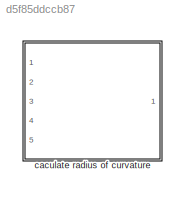
MODEL slx_d5f85ddccb87
KIND library
CONFIG AbsTol = auto
CONFIG EnableMultiTasking = off
CONFIG FixedStep = auto
CONFIG MaxStep = auto
CONFIG MinStep = auto
CONFIG RelTol = 1e-3
CONFIG SampleTimeConstraint = Unconstrained
CONFIG SolverName = VariableStepAuto
CONFIG StartTime = 0.0
CONFIG StopTime = 10.0
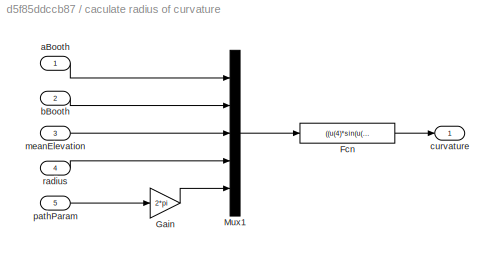
BLOCK [SubSystem] caculate radius of curvature
  Ports = [5, 1]
  RequestExecContextInheritance = off
BLOCK [Fcn] caculate radius of curvature/Fcn
  Expr = ((u(4)*sin(u(3)-(u(1)^2*1.0/u(2)^2*cos(u(5))*sin(u(5)))/(u(1)^2*1.0/u(2)^2*cos(u(5))^2+1.0))*sin((u(1)*sin(u(5)))/(u(1)^2*1.0/u(2)^2*cos(u(5))^2+1.0))*((u(1)^2*1.0/u(2)^2*cos(u(5))^2)/(u(1)^2*1.0/u(2)^2*cos(u(5))^2+1.0)-(u(1)^2*1.0/u(2)^2*sin(u(5))^2)/(u(1)^2*1.0/u(2)^2*cos(u(5))^2+1.0)+u(1)^4*1.0/u(2)^4*cos(u(5))^2*sin(u(5))^2*1.0/(u(1)^2*1.0/u(2)^2*cos(u(5))^2+1.0)^2*2.0)+u(4)*cos(u(3)-(u(1)^2*1...<+14650ch>
BLOCK [Gain] caculate radius of curvature/Gain
  Gain = 2*pi
BLOCK [Mux] caculate radius of curvature/Mux1
  DisplayOption = bar
  Inputs = 5
  Ports = [5, 1]
BLOCK [Inport] caculate radius of curvature/aBooth
BLOCK [Inport] caculate radius of curvature/bBooth
  Port = 2
BLOCK [Outport] caculate radius of curvature/curvature
BLOCK [Inport] caculate radius of curvature/meanElevation
  Port = 3
BLOCK [Inport] caculate radius of curvature/pathParam
  Port = 5
BLOCK [Inport] caculate radius of curvature/radius
  Port = 4
LINE caculate radius of curvature/Fcn:1 -> caculate radius of curvature/curvature:1
LINE caculate radius of curvature/Gain:1 -> caculate radius of curvature/Mux1:5
LINE caculate radius of curvature/Mux1:1 -> caculate radius of curvature/Fcn:1
LINE caculate radius of curvature/aBooth:1 -> caculate radius of curvature/Mux1:1
LINE caculate radius of curvature/bBooth:1 -> caculate radius of curvature/Mux1:2
LINE caculate radius of curvature/meanElevation:1 -> caculate radius of curvature/Mux1:3
LINE caculate radius of curvature/pathParam:1 -> caculate radius of curvature/Gain:1
LINE caculate radius of curvature/radius:1 -> caculate radius of curvature/Mux1:4
